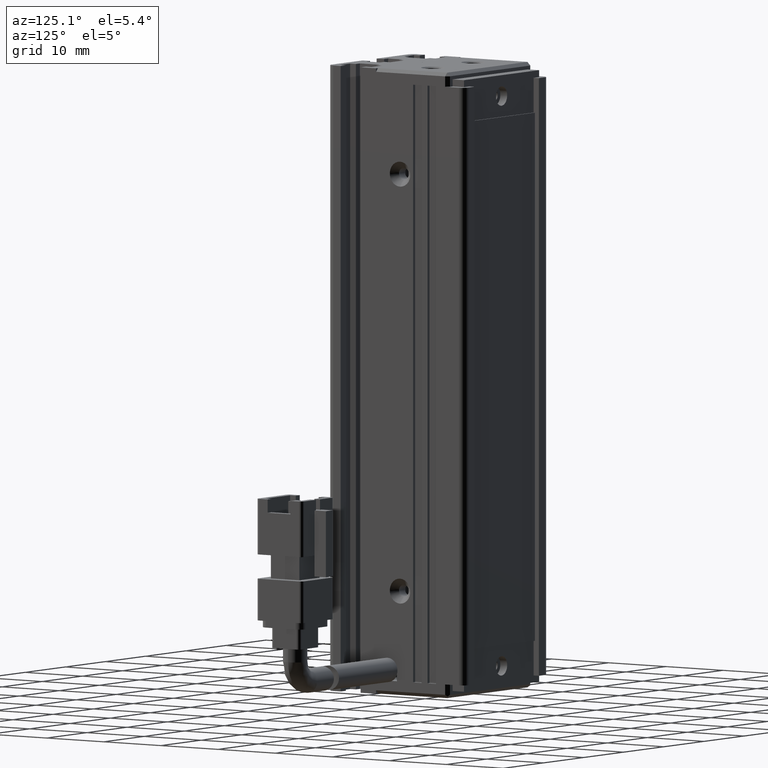
[diagram: clean part render]
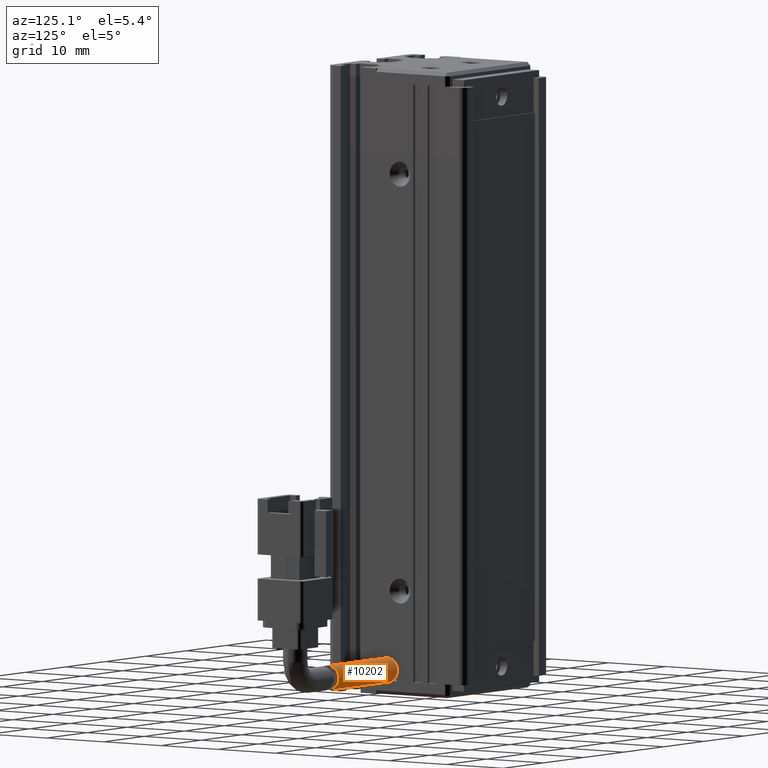
[diagram: same view with one face highlighted and labeled with its STEP entity id]
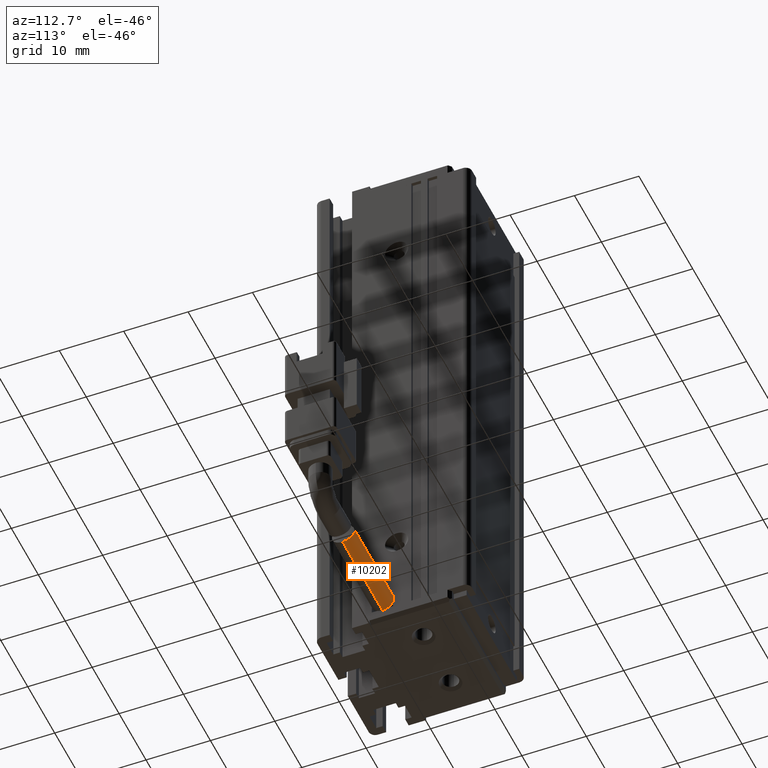
[diagram: same view with one face highlighted and labeled with its STEP entity id]
A machine part, auxiliary view. The second image highlights one B-rep face of the part: STEP entity #10202.
A second angle (auxiliary view) of the same face is appended — the face is thin or edge-on in the first view.
In plain terms, the highlighted cylindrical surface (edge-blend (fillet) strip) has radius 1.75 mm, axis along (-1, -0, -0).
Its self-contained STEP definition (entity closure, byte-faithful):
#650 = CARTESIAN_POINT ( 'NONE',  ( 71.42537974683536100, 21.49073232304857200, -158.1999999999999900 ) ) ;
#1350 = EDGE_CURVE ( 'NONE', #5766, #15503, #25833, .T. ) ;
#1721 = CARTESIAN_POINT ( 'NONE',  ( 66.12003836585688500, 22.26761315901732600, -154.8777216974355600 ) ) ;
#3048 = ORIENTED_EDGE ( 'NONE', *, *, #22078, .T. ) ;
#4444 = CARTESIAN_POINT ( 'NONE',  ( 66.20621967933266200, 21.49073232304855800, -158.2000000000000200 ) ) ;
#4662 = CARTESIAN_POINT ( 'NONE',  ( 66.08400798320373300, 22.89150646391432900, -157.5237529889948300 ) ) ;
#4767 = CARTESIAN_POINT ( 'NONE',  ( 66.17113496622531000, 22.26883414955935000, -158.0216747521504000 ) ) ;
#5287 = CARTESIAN_POINT ( 'NONE',  ( 51.42537974683536100, 21.49073232304850800, -154.6999999999999900 ) ) ;
#5766 = VERTEX_POINT ( 'NONE', #25252 ) ;
#5893 = DIRECTION ( 'NONE',  ( -1.000000000000000000, -3.304235192336770000E-015, -8.579261317967046800E-031 ) ) ;
#7072 = CARTESIAN_POINT ( 'NONE',  ( 66.12463420223005500, 22.64847476324763400, -157.7673024940898200 ) ) ;
#7456 = ORIENTED_EDGE ( 'NONE', *, *, #20041, .T. ) ;
#8061 = DIRECTION ( 'NONE',  ( 0.0000000000000000000, 0.0000000000000000000, 1.000000000000000000 ) ) ;
#8912 = CARTESIAN_POINT ( 'NONE',  ( 66.02159805663031000, 22.88828370669178400, -155.3725020553220600 ) ) ;
#9015 = CARTESIAN_POINT ( 'NONE',  ( 65.98134991565424900, 23.24078982580401500, -156.5637194744110700 ) ) ;
#9408 = CARTESIAN_POINT ( 'NONE',  ( 51.42537974683536100, 21.49073232304853000, -158.1999999999999900 ) ) ;
#9695 = CARTESIAN_POINT ( 'NONE',  ( 66.05492445293644700, 23.01977546981313000, -157.3316429091015000 ) ) ;
#9727 = AXIS2_PLACEMENT_3D ( 'NONE', #22506, #19789, #14820 ) ;
#10202 = ADVANCED_FACE ( 'NONE', ( #24627 ), #26596, .T. ) ;
#11174 = VERTEX_POINT ( 'NONE', #9408 ) ;
#11842 = CARTESIAN_POINT ( 'NONE',  ( 66.07835221810199800, 22.55760743916209400, -155.0581316121932800 ) ) ;
#12278 = CARTESIAN_POINT ( 'NONE',  ( 66.16064130294120100, 22.37141064514801100, -157.9665380968413900 ) ) ;
#14005 = CARTESIAN_POINT ( 'NONE',  ( 65.97024437261940500, 23.19420936625597600, -155.9887505292055300 ) ) ;
#14220 = CARTESIAN_POINT ( 'NONE',  ( 66.15272929082432500, 21.94491196028725400, -154.7561066842592900 ) ) ;
#14820 = DIRECTION ( 'NONE',  ( 0.0000000000000000000, 0.0000000000000000000, 1.000000000000000000 ) ) ;
#15261 = CIRCLE ( 'NONE', #9727, 1.750000000000001600 ) ;
#15503 = VERTEX_POINT ( 'NONE', #5287 ) ;
#16376 = EDGE_CURVE ( 'NONE', #5766, #23761, #26352, .T. ) ;
#16815 = CARTESIAN_POINT ( 'NONE',  ( 66.19668055208003900, 21.95177912622205300, -158.1536289975071000 ) ) ;
#16940 = CARTESIAN_POINT ( 'NONE',  ( 66.01781632386861500, 23.15157741340434700, -157.0132809039903300 ) ) ;
#18113 = ORIENTED_EDGE ( 'NONE', *, *, #16376, .T. ) ;
#18125 = DIRECTION ( 'NONE',  ( -1.000000000000000000, -3.304235192336770000E-015, -8.579261317967046800E-031 ) ) ;
#18768 = CARTESIAN_POINT ( 'NONE',  ( 66.16564187166542900, 21.72081579437508100, -154.7114329739075900 ) ) ;
#19086 = CARTESIAN_POINT ( 'NONE',  ( 66.10664507071450700, 22.36783389789095000, -154.9313779437375700 ) ) ;
#19789 = DIRECTION ( 'NONE',  ( 1.000000000000000000, 3.304235192336770000E-015, 8.579261317967046800E-031 ) ) ;
#20041 = EDGE_CURVE ( 'NONE', #23761, #11174, #29785, .T. ) ;
#21296 = AXIS2_PLACEMENT_3D ( 'NONE', #22889, #18125, #8061 ) ;
#22078 = EDGE_CURVE ( 'NONE', #11174, #15503, #15261, .T. ) ;
#22506 = CARTESIAN_POINT ( 'NONE',  ( 51.42537974683536100, 21.49073232304850800, -156.4499999999999900 ) ) ;
#22889 = CARTESIAN_POINT ( 'NONE',  ( 71.42537974683536100, 21.49073232304857200, -156.4499999999999900 ) ) ;
#23137 = VECTOR ( 'NONE', #5893, 1000.000000000000000 ) ;
#23670 = CARTESIAN_POINT ( 'NONE',  ( 66.20621967933266200, 21.49073232304855800, -158.2000000000000200 ) ) ;
#23761 = VERTEX_POINT ( 'NONE', #23670 ) ;
#23861 = CARTESIAN_POINT ( 'NONE',  ( 65.99693793915955100, 23.01894157653051900, -155.5672986979645900 ) ) ;
#24407 = CARTESIAN_POINT ( 'NONE',  ( 66.13743220877901800, 22.56061969415858600, -157.8395406144934200 ) ) ;
#24627 = FACE_OUTER_BOUND ( 'NONE', #25320, .T. ) ;
#25252 = CARTESIAN_POINT ( 'NONE',  ( 66.16909918599567700, 21.49073232304855500, -154.6999999999999900 ) ) ;
#25259 = DIRECTION ( 'NONE',  ( -1.000000000000000000, -3.304235192336770000E-015, -8.579261317967046800E-031 ) ) ;
#25320 = EDGE_LOOP ( 'NONE', ( #18113, #7456, #3048, #28578 ) ) ;
#25833 = LINE ( 'NONE', #30384, #28194 ) ;
#26352 = B_SPLINE_CURVE_WITH_KNOTS ( 'NONE', 3,
 ( #26712, #29085, #18768, #14220, #31629, #1721, #19086, #11842, #31184, #8912, #23861, #14005, #28870, #9015, #26383, #27160, #16940, #9695, #4662, #7072, #24407, #12278, #4767, #16815, #29526, #4444 ),
 .UNSPECIFIED., .F., .F.,
 ( 4, 2, 2, 2, 2, 2, 2, 2, 2, 2, 2, 2, 4 ),
 ( 0.005490571999675115800, 0.005833718808239246300, 0.006176865616803375900, 0.006520012425367506400, 0.006863159233931636800, 0.007549452851059833600, 0.008235746468188030400, 0.008578893276752087200, 0.008922040085316143900, 0.009608333702444255700, 0.009951480511008340200, 0.01029462731957242500, 0.01098092093670055000 ),
 .UNSPECIFIED. ) ;
#26383 = CARTESIAN_POINT ( 'NONE',  ( 65.98855349268924900, 23.22932324687321100, -156.6799364845564400 ) ) ;
#26596 = CYLINDRICAL_SURFACE ( 'NONE', #21296, 1.750000000000001600 ) ;
#26712 = CARTESIAN_POINT ( 'NONE',  ( 66.16909918599567700, 21.49073232304855500, -154.6999999999999900 ) ) ;
#27160 = CARTESIAN_POINT ( 'NONE',  ( 66.00678294115664400, 23.18463344848183600, -156.9041675512314400 ) ) ;
#28194 = VECTOR ( 'NONE', #25259, 1000.000000000000000 ) ;
#28578 = ORIENTED_EDGE ( 'NONE', *, *, #1350, .F. ) ;
#28870 = CARTESIAN_POINT ( 'NONE',  ( 65.96799919059763800, 23.24061665153338700, -156.2199166147517000 ) ) ;
#29085 = CARTESIAN_POINT ( 'NONE',  ( 66.16909918599564800, 21.60680859003607400, -154.7000000000000200 ) ) ;
#29526 = CARTESIAN_POINT ( 'NONE',  ( 66.20621967933263400, 21.72282869244823200, -158.1999999999999300 ) ) ;
#29785 = LINE ( 'NONE', #650, #23137 ) ;
#30384 = CARTESIAN_POINT ( 'NONE',  ( 71.42537974683536100, 21.49073232304857200, -154.6999999999999900 ) ) ;
#31184 = CARTESIAN_POINT ( 'NONE',  ( 66.06343873949747100, 22.64709544356476900, -155.1315777397996700 ) ) ;
#31629 = CARTESIAN_POINT ( 'NONE',  ( 66.14312513808747000, 22.05618387698944400, -154.7899194494976600 ) ) ;